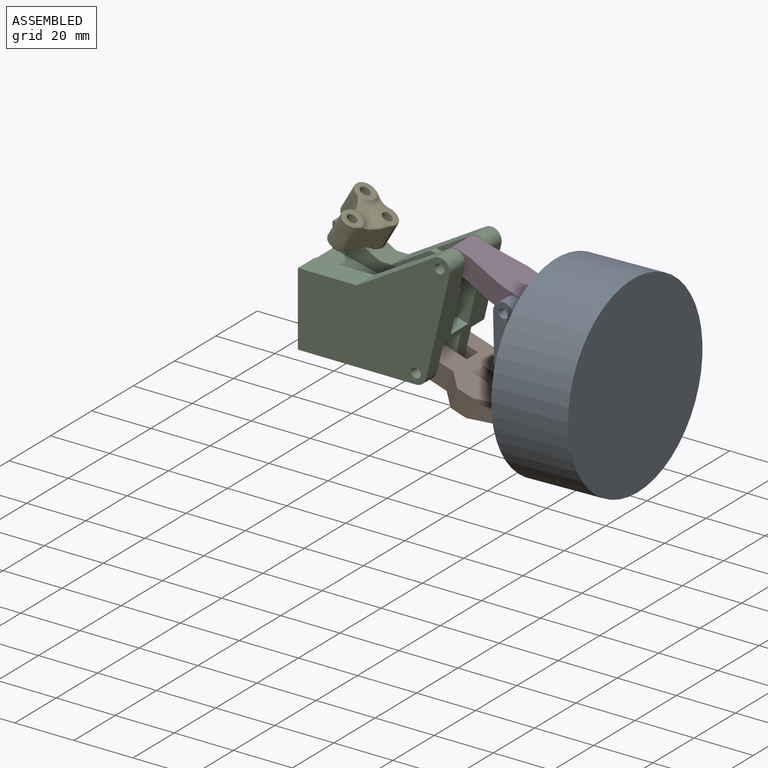
[diagram: assembled view]
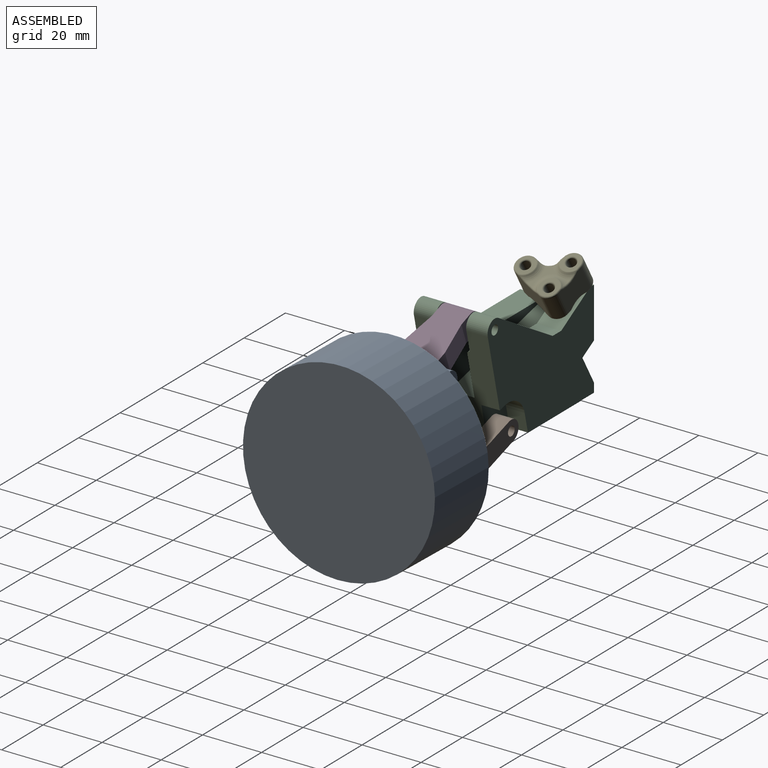
[diagram: assembled view, second angle]
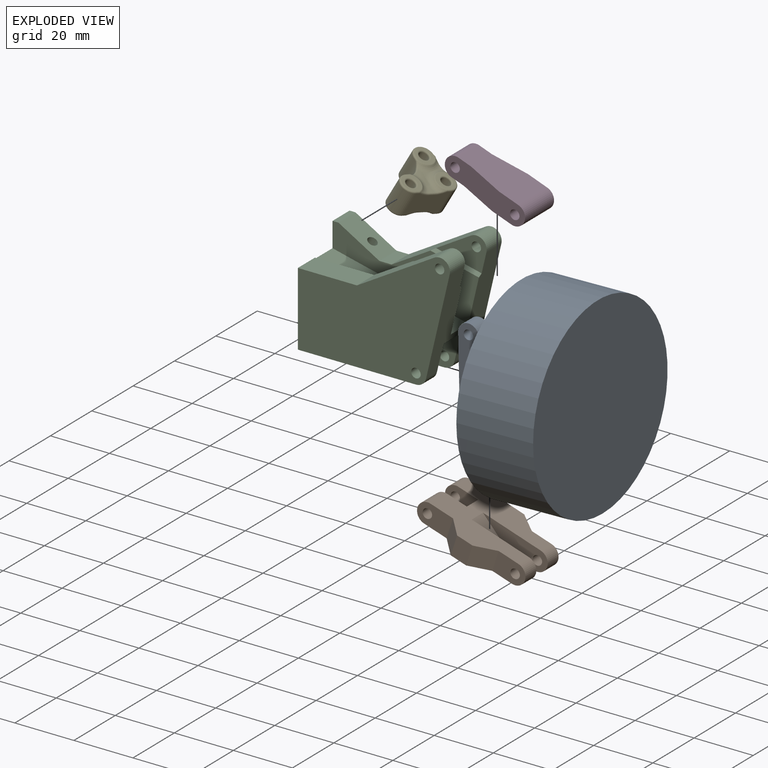
[diagram: exploded view]
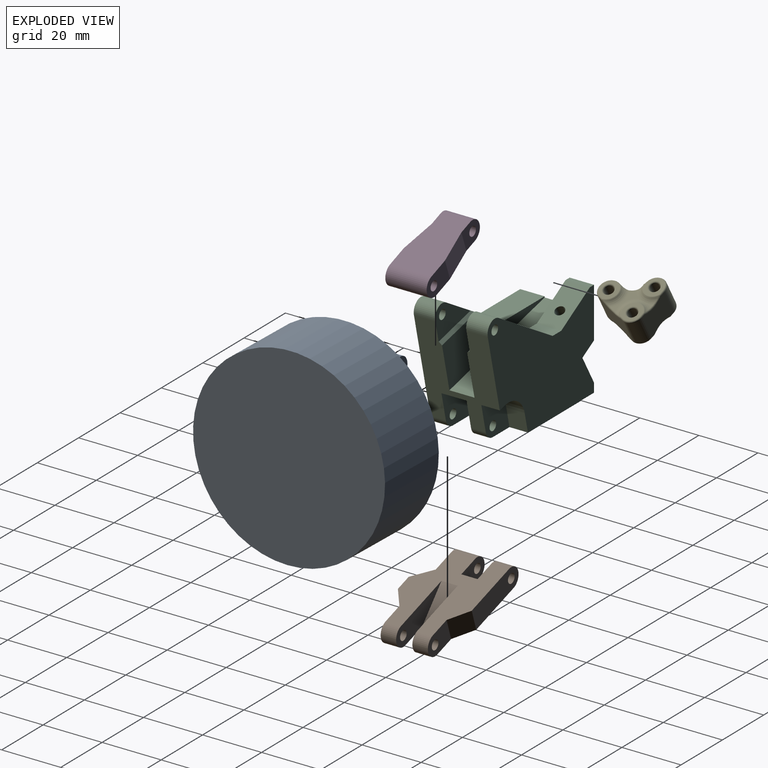
[diagram: exploded view, second angle]
ASSEMBLY  parts=5 mates=5
PART A: 29 faces, bbox 39x65x65 mm
  f0: plane 7x2.5mm, normal (0,0,-1), area 17.5mm2, adj f1,f4,f15,f23
  f1: plane 36x25mm, normal (1,0,0), area 376.3mm2, adj f0,f2,f3,f5,f6,f11,f12,f13
  f2: cylinder r=3.5mm len=7mm, axis (0,1,0), area 57.7mm2, adj f1,f4,f12,f17
  f3: cylinder r=3.5mm len=7mm, axis (0,1,0), area 57.7mm2, adj f1,f4,f11,f18
  f4: plane 36x25mm, normal (-1,0,0), area 663mm2, adj f0,f2,f3,f5,f6,f11,f12,f13
  f5: cylinder r=3.5mm len=7mm, axis (0,1,0), area 46.7mm2, adj f1,f4,f12,f14
  f6: cylinder r=3.5mm len=7mm, axis (0,1,0), area 46.7mm2, adj f1,f4,f11,f15
  f7: cylinder r=1.6mm len=5.25mm, axis (0,1,0), area 52.8mm2, adj f12,f17
  f8: cylinder r=1.6mm len=5.25mm, axis (0,1,0), area 52.8mm2, adj f11,f18
  f9: cylinder r=1.6mm len=4.25mm, axis (0,1,0), area 42.7mm2, adj f12,f14
  f10: cylinder r=1.6mm len=4.25mm, axis (0,1,0), area 42.7mm2, adj f11,f15
  f11: plane 43x7mm, normal (0,-1,0), area 274.4mm2, adj f1,f3,f4,f6,f8,f10
  f12: plane 43x7mm, normal (0,1,0), area 274.4mm2, adj f1,f2,f4,f5,f7,f9
  f13: plane 7x2.5mm, normal (0,0,-1), area 17.5mm2, adj f1,f4,f14,f24
  f14: plane 8.5x7mm, normal (0,-1,0), area 46.2mm2, adj f1,f4,f5,f9,f13
  f15: plane 8.5x7mm, normal (0,1,0), area 46.2mm2, adj f0,f1,f4,f6,f10
  f16: plane 14.5x7mm, normal (0,0,1), area 101.5mm2, adj f1,f4,f17,f18
  f17: plane 10.5x7mm, normal (0,-1,0), area 60.2mm2, adj f1,f2,f4,f7,f16
  f18: plane 10.5x7mm, normal (0,1,0), area 60.2mm2, adj f1,f3,f4,f8,f16
  f19: plane 5x5mm, normal (0,-1,0), area 12.5mm2, adj f4,f22,f24
  f20: plane 5x5mm, normal (0,1,0), area 12.5mm2, adj f4,f22,f23
  f21: plane 5.5x2mm, normal (0,0,-1), area 11mm2, adj f1,f22,f23,f24
  f22: plane 5.5x5mm, normal (-0.71,0,-0.71), area 38.9mm2, adj f4,f19,f20,f21
  f23: plane 7x3mm, normal (0,0.71,-0.71), area 29.7mm2, adj f0,f1,f4,f20,f21
  f24: plane 7x3mm, normal (0,-0.71,-0.71), area 29.7mm2, adj f1,f4,f13,f19,f21
  f25: cylinder r=10mm len=20mm, axis (-1,0,0), area 377mm2, adj f1,f28
  f26: cylinder r=32.5mm len=65mm, axis (-1,0,0), area 5309.3mm2, adj f27,f28
  f27: plane 65x65mm, normal (1,0,0), area 3318.3mm2, adj f26
  f28: plane 65x65mm, normal (-1,0,0), area 3004.1mm2, adj f25,f26
PART B: 24 faces, bbox 39x25x7 mm
  f0: cylinder r=1.6mm len=8mm, axis (0,1,0), area 80.4mm2, adj f3,f13
  f1: plane 7x5.5mm, normal (-1,0,0), area 38.5mm2, adj f2,f3,f5,f8
  f2: plane 10.5x7mm, normal (0,-1,0), area 60.2mm2, adj f1,f4,f5,f8,f9
  f3: plane 10.5x7mm, normal (0,1,0), area 60.2mm2, adj f0,f1,f5,f8,f12
  f4: cylinder r=3.5mm len=7mm, axis (0,1,0), area 66mm2, adj f2,f5,f8,f11
  f5: plane 32x25mm, normal (0,0,-1), area 565.6mm2, adj f1,f2,f3,f4,f6,f7,f10,f11
  f6: cylinder r=3.5mm len=7mm, axis (0,1,0), area 57.7mm2, adj f5,f8,f17,f18
  f7: cylinder r=3.5mm len=7mm, axis (0,1,0), area 57.7mm2, adj f5,f8,f15,f19
  f8: plane 32x25mm, normal (0,0,1), area 499.6mm2, adj f1,f2,f3,f4,f6,f7,f10,f11
  f9: cylinder r=1.6mm len=6mm, axis (0,1,0), area 60.3mm2, adj f2,f11
  f10: plane 7x5.5mm, normal (0,-1,0), area 38.5mm2, adj f5,f8,f14,f22
  f11: plane 22.5x7mm, normal (0,1,0), area 144.2mm2, adj f4,f5,f8,f9,f16
  f12: cylinder r=3.5mm len=8mm, axis (0,1,0), area 88mm2, adj f3,f5,f8,f13
  f13: plane 11.5x7mm, normal (0,-1,0), area 67.2mm2, adj f0,f5,f8,f12,f22
  f14: plane 7x6mm, normal (0.6,-0.8,0), area 52.5mm2, adj f5,f8,f10,f15
  f15: plane 10.5x7mm, normal (0,-1,0), area 60.2mm2, adj f5,f7,f8,f14,f20
  f16: plane 7x6mm, normal (0.6,0.8,0), area 52.5mm2, adj f5,f8,f11,f17
  f17: plane 10.5x7mm, normal (0,1,0), area 60.2mm2, adj f5,f6,f8,f16,f21
  f18: plane 24x7mm, normal (0,-1,0), area 112.7mm2, adj f5,f6,f8,f21,f23
  f19: plane 24x7mm, normal (0,1,0), area 112.7mm2, adj f5,f7,f8,f20,f23
  f20: cylinder r=1.6mm len=5.25mm, axis (0,1,0), area 52.8mm2, adj f15,f19
  f21: cylinder r=1.6mm len=5.25mm, axis (0,1,0), area 52.8mm2, adj f17,f18
  f22: plane 7x5.5mm, normal (-0.71,-0.71,0), area 54.4mm2, adj f5,f8,f10,f13
  f23: plane 12x7mm, normal (0.5,0,0.86), area 76.4mm2, adj f5,f8,f18,f19
PART C: 39 faces, bbox 51.5x25x41 mm
  f0: plane 51.5x41mm, normal (0,1,0), area 1309.3mm2, adj f1,f2,f3,f6,f9,f11,f13,f26
  f1: plane 33x25mm, normal (-1,0,0), area 580.8mm2, adj f0,f3,f12,f15,f16,f17,f18,f31
  f2: plane 34x25mm, normal (0.97,0,-0.23), area 518.3mm2, adj f0,f4,f5,f6,f10,f15,f16,f17
  f3: plane 40x25mm, normal (0,0,-1), area 881.8mm2, adj f0,f1,f4,f10,f15,f21,f22,f23
  f4: cylinder r=3.5mm len=5mm, axis (0,1,0), area 23.4mm2, adj f2,f3,f22,f27
  f5: cylinder r=3.5mm len=7.25mm, axis (0,1,0), area 59.3mm2, adj f2,f7,f15,f20
  f6: cylinder r=3.5mm len=7.25mm, axis (0,1,0), area 59.3mm2, adj f0,f2,f11,f19
  f7: plane 26.22x15.51mm, normal (-0.51,0,0.86), area 236.9mm2, adj f5,f12,f15,f16,f20,f38
  f8: cylinder r=1.6mm len=7.25mm, axis (0,1,0), area 72.9mm2, adj f15,f20
  f9: plane 8.25x4.14mm, normal (0,0,1), area 34.2mm2, adj f0,f11,f18,f32
  f10: cylinder r=3.5mm len=5.25mm, axis (0,1,0), area 24.6mm2, adj f2,f3,f15,f23
  f11: plane 26.22x15.51mm, normal (-0.51,0,0.86), area 236.9mm2, adj f0,f6,f9,f18,f19,f37
  f12: plane 20x8.25mm, normal (0,0,1), area 165mm2, adj f1,f7,f15,f16
  f13: cylinder r=1.6mm len=7.25mm, axis (0,1,0), area 72.9mm2, adj f0,f19
  f14: cylinder r=1.6mm len=5.25mm, axis (0,1,0), area 52.8mm2, adj f15,f23
  f15: plane 51.5x41mm, normal (0,-1,0), area 1393mm2, adj f1,f2,f3,f5,f7,f8,f10,f12
  f16: plane 49.57x18.95mm, normal (0,1,0), area 425.2mm2, adj f1,f2,f7,f12,f17,f38
  f17: plane 46.02x10.83mm, normal (0.23,0,0.97), area 401.9mm2, adj f1,f2,f16,f18
  f18: plane 49.57x19.18mm, normal (0,-1,0), area 496.7mm2, adj f1,f2,f9,f11,f17,f31,f32,f37
  f19: plane 17.11x11.12mm, normal (0,-1,0), area 98mm2, adj f2,f6,f11,f13,f37
  f20: plane 17.11x11.12mm, normal (0,1,0), area 98mm2, adj f2,f5,f7,f8,f38
  f21: plane 8.5x6.56mm, normal (0.97,0,-0.23), area 57.3mm2, adj f3,f22,f23,f29
  f22: plane 13.6x12.73mm, normal (0,-1,0), area 118.6mm2, adj f2,f3,f4,f21,f24,f25,f29
  f23: plane 13.6x12.73mm, normal (0,1,0), area 118.6mm2, adj f2,f3,f10,f14,f21,f24,f29
  f24: plane 8.5x2.43mm, normal (-0.23,0,-0.97), area 21.3mm2, adj f2,f22,f23,f29
  f25: cylinder r=1.6mm len=5mm, axis (0,1,0), area 50.3mm2, adj f22,f27
  f26: plane 6.56x6.25mm, normal (0.97,0,-0.23), area 42.1mm2, adj f0,f3,f27,f30
  f27: plane 13.6x12.73mm, normal (0,1,0), area 118.6mm2, adj f2,f3,f4,f25,f26,f28,f30
  f28: plane 6.25x2.43mm, normal (-0.23,0,-0.97), area 15.6mm2, adj f0,f2,f27,f30
  f29: cylinder r=8mm len=9.62mm, axis (0,-1,0), area 106.8mm2, adj f21,f22,f23,f24
  f30: cylinder r=8mm len=9.62mm, axis (0,-1,0), area 78.5mm2, adj f0,f26,f27,f28
  f31: plane 8.25x2mm, normal (0,0,1), area 16.5mm2, adj f0,f1,f18,f32
  f32: plane 13.86x8.25mm, normal (0.5,0,0.87), area 124mm2, adj f0,f9,f18,f31,f33
  f33: cylinder r=1.6mm len=15.19mm, axis (0.5,0,0.87), area 157.7mm2, adj f32,f34
  f34: plane 8.25x5.63mm, normal (-0.5,0,-0.87), area 45.6mm2, adj f0,f1,f33,f35,f36
  f35: plane 9.75x8.25mm, normal (-0.87,0,0.5), area 92.9mm2, adj f0,f1,f34,f36
  f36: plane 13x5.63mm, normal (0,1,0), area 36.6mm2, adj f1,f34,f35
  f37: plane 16.66x4.6mm, normal (0.16,-0.71,0.69), area 23.1mm2, adj f2,f11,f18,f19
  f38: plane 16.66x4.6mm, normal (0.16,0.71,0.69), area 23.1mm2, adj f2,f7,f16,f20
PART D: 12 faces, bbox 30x14x7 mm
  f0: cylinder r=1.6mm len=14mm, axis (0,1,0), area 140.7mm2, adj f3,f6
  f1: plane 11.5x7mm, normal (-0.17,-0.99,0), area 81.7mm2, adj f2,f3,f9,f11
  f2: plane 8x7mm, normal (0,-1,0), area 42.7mm2, adj f1,f7,f8,f9,f11
  f3: plane 10.5x7mm, normal (0,-1,0), area 60.2mm2, adj f0,f1,f9,f10,f11
  f4: plane 11.5x7mm, normal (-0.17,0.99,0), area 81.7mm2, adj f5,f6,f9,f11
  f5: plane 8x7mm, normal (0,1,0), area 42.7mm2, adj f4,f7,f8,f9,f11
  f6: plane 10.5x7mm, normal (0,1,0), area 60.2mm2, adj f0,f4,f9,f10,f11
  f7: cylinder r=1.6mm len=10mm, axis (0,1,0), area 100.5mm2, adj f2,f5
  f8: cylinder r=3.5mm len=10mm, axis (0,1,0), area 110mm2, adj f2,f5,f9,f11
  f9: plane 23x14mm, normal (0,0,-1), area 281mm2, adj f1,f2,f3,f4,f5,f6,f8,f10
  f10: cylinder r=3.5mm len=14mm, axis (0,1,0), area 153.9mm2, adj f3,f6,f9,f11
  f11: plane 23x14mm, normal (0,0,1), area 281mm2, adj f1,f2,f3,f4,f5,f6,f8,f10
PART E: 88 faces, bbox 22.4x21.2x10.1 mm
  f0: plane 0.21x0.21mm, normal (0,0,-1), area 0mm2, adj f22,f23,f65
  f1: plane 8.42x3.86mm, normal (0,0,1), area 11.8mm2, adj f20,f21,f24,f80,f85
  f2: plane 9.66x9.01mm, normal (0.97,0.26,0), area 80.6mm2, adj f3,f7,f26,f30,f46,f50,f64,f65
  f3: cylinder r=3.5mm len=9mm, axis (0,0,-1), area 95mm2, adj f2,f19,f44,f48
  f4: plane 9x0.99mm, normal (0,1,0), area 8.9mm2, adj f5,f19,f35,f40
  f5: cylinder r=3.5mm len=9mm, axis (0,0,-1), area 99mm2, adj f4,f6,f34,f39
  f6: plane 12x9.01mm, normal (0,-1,0), area 94.6mm2, adj f5,f7,f29,f33,f36,f41,f59,f60
  f7: cylinder r=3.5mm len=9mm, axis (0,0,-1), area 57.7mm2, adj f2,f6,f28,f32
  f8: plane 0.21x0.21mm, normal (0,0,1), area 0mm2, adj f20,f21,f75
  f9: plane 8.42x3.86mm, normal (0,0,-1), area 11.8mm2, adj f22,f23,f25,f60,f70
  f10: plane 6.29x6.29mm, normal (0,0,-1), area 17.9mm2, adj f30,f31,f32,f33,f55
  f11: cylinder r=1.6mm len=9mm, axis (0,0,-1), area 90.5mm2, adj f54,f55
  f12: plane 6.29x6.29mm, normal (0,0,1), area 17.9mm2, adj f26,f27,f28,f29,f54
  f13: plane 6.29x6.01mm, normal (0,0,-1), area 16.7mm2, adj f39,f40,f41,f42,f43,f57
  f14: cylinder r=1.6mm len=9mm, axis (0,0,-1), area 90.5mm2, adj f56,f57
  f15: plane 6.29x6.01mm, normal (0,0,1), area 16.7mm2, adj f34,f35,f36,f37,f38,f56
  f16: plane 6.29x6.25mm, normal (0,0,-1), area 16.9mm2, adj f48,f49,f50,f51,f53
  f17: cylinder r=1.6mm len=9mm, axis (0,0,-1), area 90.5mm2, adj f52,f53
  f18: plane 6.29x6.25mm, normal (0,0,1), area 16.9mm2, adj f44,f45,f46,f47,f52
  f19: cylinder r=5mm len=9mm, axis (0,0,-1), area 66.3mm2, adj f3,f4,f37,f42,f45,f49,f69,f70
  f20: torus R=5.74mm, axis (0,0,1), area 27.6mm2, adj f1,f8,f21,f27,f74,f79
  f21: torus R=5.74mm, axis (0,0,1), area 17.2mm2, adj f1,f8,f20,f47,f76,f86
  f22: torus R=5.74mm, axis (0,0,1), area 27.6mm2, adj f0,f9,f23,f31,f59,f64
  f23: torus R=5.74mm, axis (0,0,1), area 17.2mm2, adj f0,f9,f22,f51,f66,f69
  f24: torus R=5.74mm, axis (0,0,1), area 17.6mm2, adj f1,f38,f81,f84
  f25: torus R=5.74mm, axis (0,0,1), area 17.6mm2, adj f9,f43,f61,f71
  f26: cylinder r=0.5mm len=1.43mm, axis (-0.26,0.97,0), area 1.1mm2, adj f2,f12,f28,f73
  f27: torus R=3.29mm, axis (0,0,-1), area 4.9mm2, adj f12,f20,f73,f78
  f28: torus R=3mm, axis (0,0,1), area 4.8mm2, adj f7,f12,f26,f29
  f29: cylinder r=0.5mm len=1.34mm, axis (-1,0,0), area 1.1mm2, adj f6,f12,f28,f78
  f30: cylinder r=0.5mm len=1.43mm, axis (0.26,-0.97,0), area 1.1mm2, adj f2,f10,f32,f63
  f31: torus R=3.29mm, axis (0,0,-1), area 4.9mm2, adj f10,f22,f58,f63
  f32: torus R=3mm, axis (0,0,1), area 4.8mm2, adj f7,f10,f30,f33
  f33: cylinder r=0.5mm len=1.34mm, axis (1,0,0), area 1.1mm2, adj f6,f10,f32,f58
  f34: torus R=3mm, axis (0,0,1), area 8.2mm2, adj f5,f15,f35,f36
  f35: cylinder r=0.5mm len=0.99mm, axis (-1,0,0), area 0.8mm2, adj f4,f15,f34,f37
  f36: cylinder r=0.5mm len=1.34mm, axis (-1,0,0), area 1.1mm2, adj f6,f15,f34,f82
  f37: torus R=5.5mm, axis (0,0,1), area 0.2mm2, adj f15,f19,f35,f83
  f38: torus R=3.29mm, axis (0,0,-1), area 3.1mm2, adj f15,f24,f82,f83
  f39: torus R=3mm, axis (0,0,1), area 8.2mm2, adj f5,f13,f40,f41
  f40: cylinder r=0.5mm len=0.99mm, axis (1,0,0), area 0.8mm2, adj f4,f13,f39,f42
  f41: cylinder r=0.5mm len=1.34mm, axis (1,0,0), area 1.1mm2, adj f6,f13,f39,f62
  f42: torus R=5.5mm, axis (0,0,1), area 0.2mm2, adj f13,f19,f40,f72
  f43: torus R=3.29mm, axis (0,0,-1), area 3.1mm2, adj f13,f25,f62,f72
  f44: torus R=3mm, axis (0,0,1), area 7.9mm2, adj f3,f18,f45,f46
  f45: torus R=5.5mm, axis (0,0,1), area 0.8mm2, adj f18,f19,f44,f87
  f46: cylinder r=0.5mm len=1.43mm, axis (-0.26,0.97,0), area 1.1mm2, adj f2,f18,f44,f77
  f47: torus R=3.29mm, axis (0,0,-1), area 3.4mm2, adj f18,f21,f77,f87
  f48: torus R=3mm, axis (0,0,1), area 7.9mm2, adj f3,f16,f49,f50
  f49: torus R=5.5mm, axis (0,0,1), area 0.8mm2, adj f16,f19,f48,f68
  f50: cylinder r=0.5mm len=1.43mm, axis (0.26,-0.97,0), area 1.1mm2, adj f2,f16,f48,f67
  f51: torus R=3.29mm, axis (0,0,-1), area 3.4mm2, adj f16,f23,f67,f68
  f52: torus R=2.1mm, axis (0,0,1), area 8.8mm2, adj f17,f18
  f53: torus R=2.1mm, axis (0,0,1), area 8.8mm2, adj f16,f17
  f54: torus R=2.1mm, axis (0,0,1), area 8.8mm2, adj f11,f12
  f55: torus R=2.1mm, axis (0,0,1), area 8.8mm2, adj f10,f11
  f56: torus R=2.1mm, axis (0,0,1), area 8.8mm2, adj f14,f15
  f57: torus R=2.1mm, axis (0,0,1), area 8.8mm2, adj f13,f14
  f58: sphere r=0.5mm, area 0.1mm2, adj f31,f33,f59
  f59: bspline ~4.69x1.42mm, area 2.3mm2, adj f6,f22,f58,f60
  f60: cylinder r=0.5mm len=2.22mm, axis (1,0,0), area 1.7mm2, adj f6,f9,f59,f61
  f61: bspline ~4.69x1.42mm, area 2.3mm2, adj f6,f25,f60,f62
  f62: sphere r=0.5mm, area 0.1mm2, adj f41,f43,f61
  f63: sphere r=0.5mm, area 0.1mm2, adj f30,f31,f64
  f64: bspline ~5.07x1.87mm, area 2.3mm2, adj f2,f22,f63,f65
  f65: cylinder r=0.5mm len=0.54mm, axis (-0.26,0.97,0), area 0.2mm2, adj f0,f2,f64,f66
  f66: bspline ~4.58x1.42mm, area 2.3mm2, adj f2,f23,f65,f67
  f67: sphere r=0.5mm, area 0mm2, adj f50,f51,f66
  f68: sphere r=0.5mm, area 0.1mm2, adj f49,f51,f69
  f69: bspline ~3.79x1.57mm, area 1.9mm2, adj f19,f23,f68,f70
  f70: torus R=5.5mm, axis (0,0,1), area 1.5mm2, adj f9,f19,f69,f71
  f71: bspline ~3.73x1.51mm, area 1.9mm2, adj f19,f25,f70,f72
  f72: sphere r=0.5mm, area 0.1mm2, adj f42,f43,f71
  f73: sphere r=0.5mm, area 0.1mm2, adj f26,f27,f74
  f74: bspline ~5.07x1.87mm, area 2.3mm2, adj f2,f20,f73,f75
  f75: cylinder r=0.5mm len=0.54mm, axis (0.26,-0.97,0), area 0.2mm2, adj f2,f8,f74,f76
  f76: bspline ~4.48x1.57mm, area 2.3mm2, adj f2,f21,f75,f77
  f77: sphere r=0.5mm, area 0.1mm2, adj f46,f47,f76
  f78: sphere r=0.5mm, area 0.1mm2, adj f27,f29,f79
  f79: bspline ~4.69x1.42mm, area 2.3mm2, adj f6,f20,f78,f80
  f80: cylinder r=0.5mm len=2.22mm, axis (-1,0,0), area 1.7mm2, adj f1,f6,f79,f81
  f81: bspline ~4.69x1.42mm, area 2.3mm2, adj f6,f24,f80,f82
  f82: sphere r=0.5mm, area 0.1mm2, adj f36,f38,f81
  f83: sphere r=0.5mm, area 0.1mm2, adj f37,f38,f84
  f84: bspline ~3.73x1.51mm, area 1.9mm2, adj f19,f24,f83,f85
  f85: torus R=5.5mm, axis (0,0,1), area 1.5mm2, adj f1,f19,f84,f86
  f86: bspline ~3.38x1.42mm, area 1.9mm2, adj f19,f21,f85,f87
  f87: sphere r=0.5mm, area 0.1mm2, adj f45,f47,f86
PLACE A rot(axis=(0,-1,0),1.3deg) t=(64.06,17.88,3.73)mm
PLACE B rot(axis=(0,1,0),18deg) t=(34.05,17.88,-4.36)mm
PLACE C t=(-5.95,17.88,-7.86)mm fixed
PLACE D rot(axis=(0,1,0),20.1deg) t=(42.05,17.88,29.64)mm
PLACE E rot(axis=(0.24,0.37,0.9),71.8deg) t=(5.46,26.26,21.44)mm
MATE revolute E.f7 <-> C.f33  axis (0.5,0,0.87) through (5.21,26.26,21.01)mm
MATE revolute B.f6 <-> A.f5  axis (0,-1,0) through (64.48,9.88,-14.26)mm
MATE revolute A.f2 <-> D.f0  axis (0,1,0) through (63.64,10.63,21.73)mm
MATE revolute B.f0 <-> C.f4  axis (0,1,0) through (34.05,10.88,-4.36)mm
MATE revolute D.f7 <-> C.f5  axis (0,1,0) through (42.05,22.88,29.64)mm
